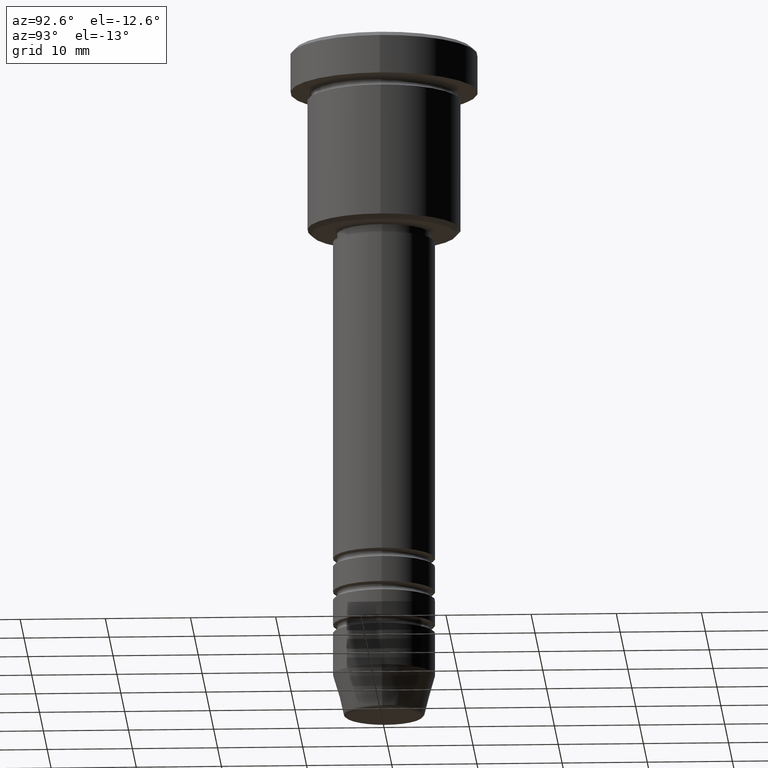
[diagram: clean part render]
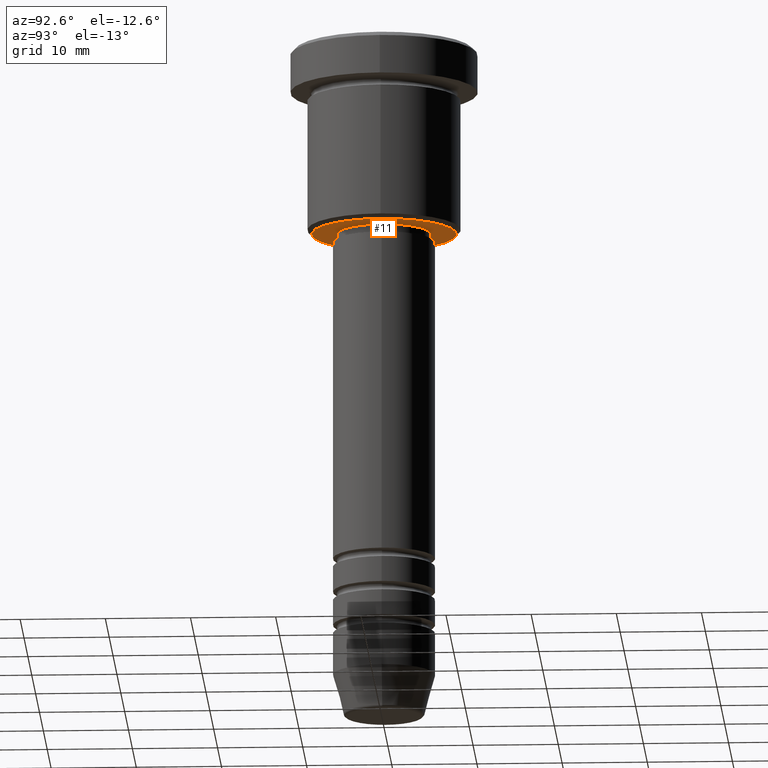
[diagram: same view with one face highlighted and labeled with its STEP entity id]
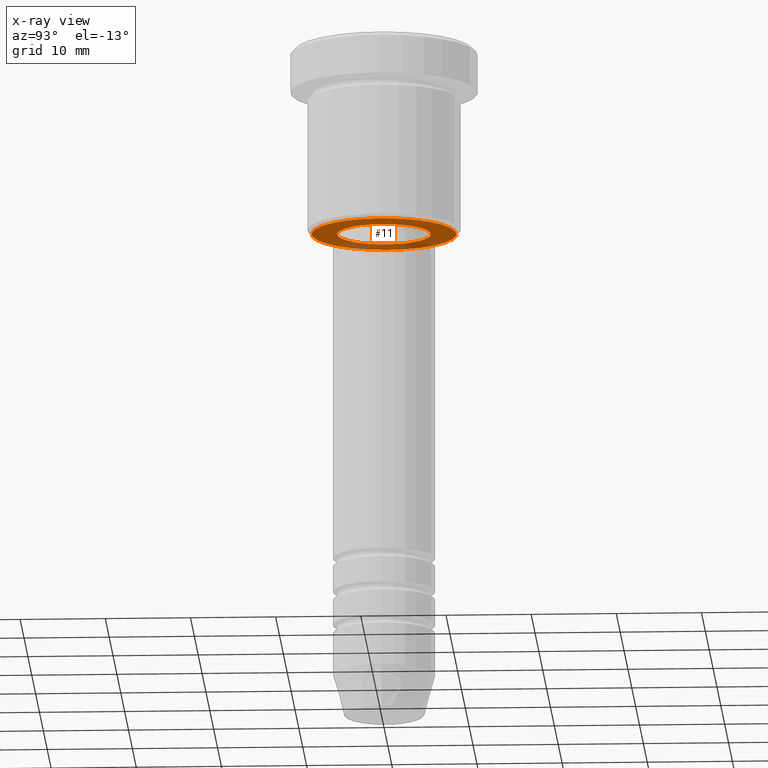
[diagram: x-ray of the same camera — body ghosted, the highlighted face saturated]
A machine part, auxiliary view. The second image highlights one B-rep face of the part: STEP entity #11.
The next image is the same camera in x-ray: the body ghosted, the highlighted face saturated — about 24% of this face is hidden behind the body in this view.
In plain terms, the highlighted planar face has unit normal (0, 0, -1).
Its self-contained STEP definition (entity closure, byte-faithful):
#11 = ADVANCED_FACE ( 'NONE', ( #918, #569 ), #464, .T. ) ;
#43 = VERTEX_POINT ( 'NONE', #65 ) ;
#44 = CARTESIAN_POINT ( 'NONE',  ( 0.000000000000000000, 0.000000000000000000, -22.00000000000000000 ) ) ;
#65 = CARTESIAN_POINT ( 'NONE',  ( 5.499999999999995559, 0.000000000000000000, -22.00000000000000000 ) ) ;
#140 = DIRECTION ( 'NONE',  ( -0.000000000000000000, -0.000000000000000000, 1.000000000000000000 ) ) ;
#270 = AXIS2_PLACEMENT_3D ( 'NONE', #564, #829, #474 ) ;
#372 = DIRECTION ( 'NONE',  ( -1.000000000000000000, 0.000000000000000000, 0.000000000000000000 ) ) ;
#412 = ORIENTED_EDGE ( 'NONE', *, *, #833, .T. ) ;
#464 = PLANE ( 'NONE',  #270 ) ;
#472 = VERTEX_POINT ( 'NONE', #521 ) ;
#474 = DIRECTION ( 'NONE',  ( -1.000000000000000000, 0.000000000000000000, -0.000000000000000000 ) ) ;
#478 = EDGE_LOOP ( 'NONE', ( #878, #1028 ) ) ;
#490 = EDGE_CURVE ( 'NONE', #43, #999, #708, .T. ) ;
#521 = CARTESIAN_POINT ( 'NONE',  ( -8.500000000000007105, 1.071565949253934321E-15, -22.00000000000000000 ) ) ;
#541 = EDGE_CURVE ( 'NONE', #472, #719, #694, .T. ) ;
#542 = AXIS2_PLACEMENT_3D ( 'NONE', #695, #604, #1059 ) ;
#558 = AXIS2_PLACEMENT_3D ( 'NONE', #1048, #835, #762 ) ;
#564 = CARTESIAN_POINT ( 'NONE',  ( 0.000000000000000000, 9.000000000000000000, -22.00000000000000000 ) ) ;
#569 = FACE_BOUND ( 'NONE', #948, .T. ) ;
#604 = DIRECTION ( 'NONE',  ( -0.000000000000000000, -0.000000000000000000, 1.000000000000000000 ) ) ;
#664 = EDGE_CURVE ( 'NONE', #719, #472, #673, .T. ) ;
#673 = CIRCLE ( 'NONE', #558, 8.500000000000007105 ) ;
#694 = CIRCLE ( 'NONE', #1119, 8.500000000000007105 ) ;
#695 = CARTESIAN_POINT ( 'NONE',  ( 0.000000000000000000, 0.000000000000000000, -22.00000000000000000 ) ) ;
#698 = DIRECTION ( 'NONE',  ( 1.000000000000000000, 0.000000000000000000, 0.000000000000000000 ) ) ;
#708 = CIRCLE ( 'NONE', #542, 5.499999999999995559 ) ;
#719 = VERTEX_POINT ( 'NONE', #953 ) ;
#744 = CARTESIAN_POINT ( 'NONE',  ( -5.499999999999995559, 6.735557395310437093E-16, -22.00000000000000000 ) ) ;
#762 = DIRECTION ( 'NONE',  ( -1.000000000000000000, 0.000000000000000000, 0.000000000000000000 ) ) ;
#770 = AXIS2_PLACEMENT_3D ( 'NONE', #44, #140, #698 ) ;
#819 = CARTESIAN_POINT ( 'NONE',  ( 0.000000000000000000, 0.000000000000000000, -22.00000000000000000 ) ) ;
#829 = DIRECTION ( 'NONE',  ( 0.000000000000000000, 0.000000000000000000, -1.000000000000000000 ) ) ;
#833 = EDGE_CURVE ( 'NONE', #999, #43, #1033, .T. ) ;
#835 = DIRECTION ( 'NONE',  ( 0.000000000000000000, 0.000000000000000000, -1.000000000000000000 ) ) ;
#878 = ORIENTED_EDGE ( 'NONE', *, *, #664, .T. ) ;
#918 = FACE_OUTER_BOUND ( 'NONE', #478, .T. ) ;
#948 = EDGE_LOOP ( 'NONE', ( #1162, #412 ) ) ;
#953 = CARTESIAN_POINT ( 'NONE',  ( 8.500000000000007105, 0.000000000000000000, -22.00000000000000000 ) ) ;
#999 = VERTEX_POINT ( 'NONE', #744 ) ;
#1028 = ORIENTED_EDGE ( 'NONE', *, *, #541, .T. ) ;
#1033 = CIRCLE ( 'NONE', #770, 5.499999999999995559 ) ;
#1048 = CARTESIAN_POINT ( 'NONE',  ( 0.000000000000000000, 0.000000000000000000, -22.00000000000000000 ) ) ;
#1059 = DIRECTION ( 'NONE',  ( 1.000000000000000000, 0.000000000000000000, 0.000000000000000000 ) ) ;
#1090 = DIRECTION ( 'NONE',  ( 0.000000000000000000, 0.000000000000000000, -1.000000000000000000 ) ) ;
#1119 = AXIS2_PLACEMENT_3D ( 'NONE', #819, #1090, #372 ) ;
#1162 = ORIENTED_EDGE ( 'NONE', *, *, #490, .T. ) ;